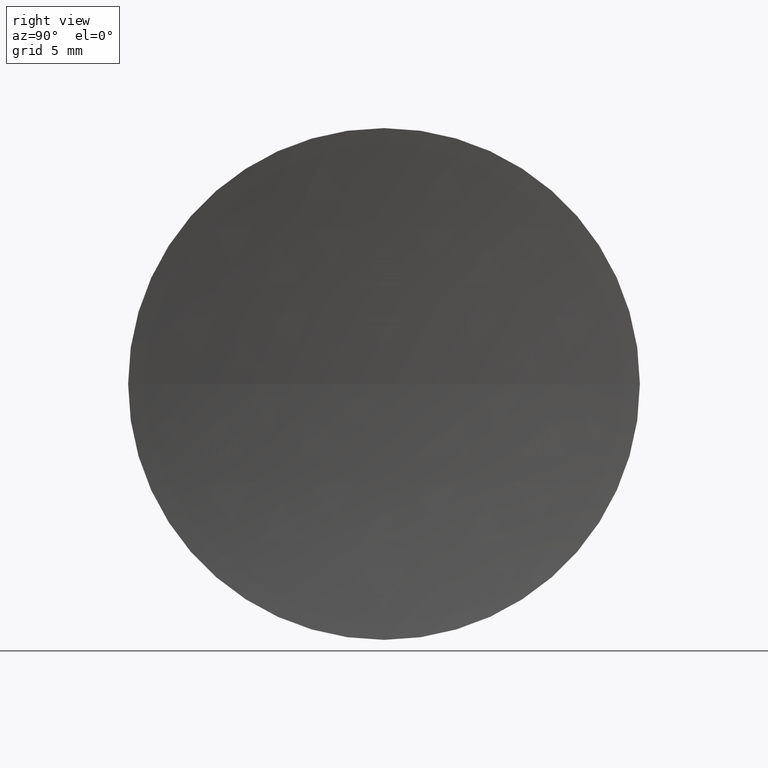
[diagram: clean part render]
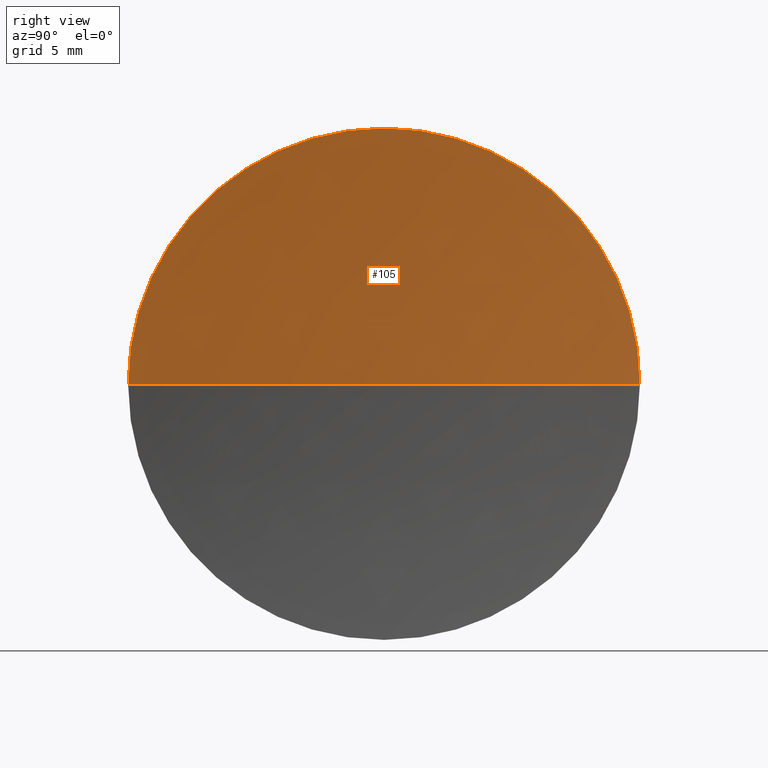
[diagram: same view with one face highlighted and labeled with its STEP entity id]
A machine part, right view. The second image highlights one B-rep face of the part: STEP entity #105.
In plain terms, the highlighted spherical surface has radius 92.6 mm.
Its self-contained STEP definition (entity closure, byte-faithful):
#10 = DIRECTION ( 'NONE',  ( 0.0000000000000000000, 1.000000000000000000, 1.224646799147353000E-016 ) ) ;
#14 = VERTEX_POINT ( 'NONE', #35 ) ;
#15 = AXIS2_PLACEMENT_3D ( 'NONE', #149, #56, #97 ) ;
#24 = DIRECTION ( 'NONE',  ( -1.000000000000000000, -0.0000000000000000000, -0.0000000000000000000 ) ) ;
#25 = CARTESIAN_POINT ( 'NONE',  ( 122.7277341085402600, 77.92260287298734100, 0.0000000000000000000 ) ) ;
#35 = CARTESIAN_POINT ( 'NONE',  ( 121.8527034462293400, 65.22260287298732400, 0.0000000000000000000 ) ) ;
#37 = AXIS2_PLACEMENT_3D ( 'NONE', #117, #114, #38 ) ;
#38 = DIRECTION ( 'NONE',  ( 0.0000000000000000000, 1.000000000000000000, 0.0000000000000000000 ) ) ;
#46 = ORIENTED_EDGE ( 'NONE', *, *, #64, .T. ) ;
#56 = DIRECTION ( 'NONE',  ( 0.0000000000000000000, 0.0000000000000000000, 1.000000000000000000 ) ) ;
#60 = CARTESIAN_POINT ( 'NONE',  ( 122.7277341085402600, 65.22260287298739500, 12.69999999999997400 ) ) ;
#64 = EDGE_CURVE ( 'NONE', #147, #14, #166, .T. ) ;
#71 = DIRECTION ( 'NONE',  ( 0.0000000000000000000, 0.0000000000000000000, 1.000000000000000000 ) ) ;
#74 = CIRCLE ( 'NONE', #128, 12.69999999999997400 ) ;
#86 = EDGE_CURVE ( 'NONE', #153, #14, #232, .T. ) ;
#92 = CARTESIAN_POINT ( 'NONE',  ( 122.7277341085402600, 52.52260287298737800, -1.555301434917131700E-015 ) ) ;
#96 = EDGE_LOOP ( 'NONE', ( #206, #46, #133, #219 ) ) ;
#97 = DIRECTION ( 'NONE',  ( 1.000000000000000000, 0.0000000000000000000, 0.0000000000000000000 ) ) ;
#104 = EDGE_CURVE ( 'NONE', #164, #153, #74, .T. ) ;
#105 = ADVANCED_FACE ( 'NONE', ( #143 ), #151, .F. ) ;
#110 = CARTESIAN_POINT ( 'NONE',  ( 214.4527034462293200, 65.22260287298732400, 0.0000000000000000000 ) ) ;
#114 = DIRECTION ( 'NONE',  ( 0.0000000000000000000, 0.0000000000000000000, -1.000000000000000000 ) ) ;
#115 = AXIS2_PLACEMENT_3D ( 'NONE', #226, #24, #135 ) ;
#117 = CARTESIAN_POINT ( 'NONE',  ( 214.4527034462293200, 65.22260287298732400, 0.0000000000000000000 ) ) ;
#128 = AXIS2_PLACEMENT_3D ( 'NONE', #228, #225, #71 ) ;
#130 = EDGE_CURVE ( 'NONE', #147, #164, #194, .T. ) ;
#133 = ORIENTED_EDGE ( 'NONE', *, *, #86, .F. ) ;
#135 = DIRECTION ( 'NONE',  ( 0.0000000000000000000, 0.0000000000000000000, 1.000000000000000000 ) ) ;
#143 = FACE_OUTER_BOUND ( 'NONE', #96, .T. ) ;
#147 = VERTEX_POINT ( 'NONE', #92 ) ;
#149 = CARTESIAN_POINT ( 'NONE',  ( 214.4527034462293200, 65.22260287298732400, 0.0000000000000000000 ) ) ;
#151 = SPHERICAL_SURFACE ( 'NONE', #37, 92.59999999999999400 ) ;
#153 = VERTEX_POINT ( 'NONE', #25 ) ;
#164 = VERTEX_POINT ( 'NONE', #60 ) ;
#166 = CIRCLE ( 'NONE', #193, 92.60000000000000900 ) ;
#190 = DIRECTION ( 'NONE',  ( 0.0000000000000000000, 1.224646799147353200E-016, -1.000000000000000000 ) ) ;
#193 = AXIS2_PLACEMENT_3D ( 'NONE', #110, #190, #10 ) ;
#194 = CIRCLE ( 'NONE', #115, 12.69999999999997400 ) ;
#206 = ORIENTED_EDGE ( 'NONE', *, *, #130, .F. ) ;
#219 = ORIENTED_EDGE ( 'NONE', *, *, #104, .F. ) ;
#225 = DIRECTION ( 'NONE',  ( -1.000000000000000000, -0.0000000000000000000, -0.0000000000000000000 ) ) ;
#226 = CARTESIAN_POINT ( 'NONE',  ( 122.7277341085402600, 65.22260287298739500, 0.0000000000000000000 ) ) ;
#228 = CARTESIAN_POINT ( 'NONE',  ( 122.7277341085402600, 65.22260287298739500, 0.0000000000000000000 ) ) ;
#232 = CIRCLE ( 'NONE', #15, 92.59999999999999400 ) ;